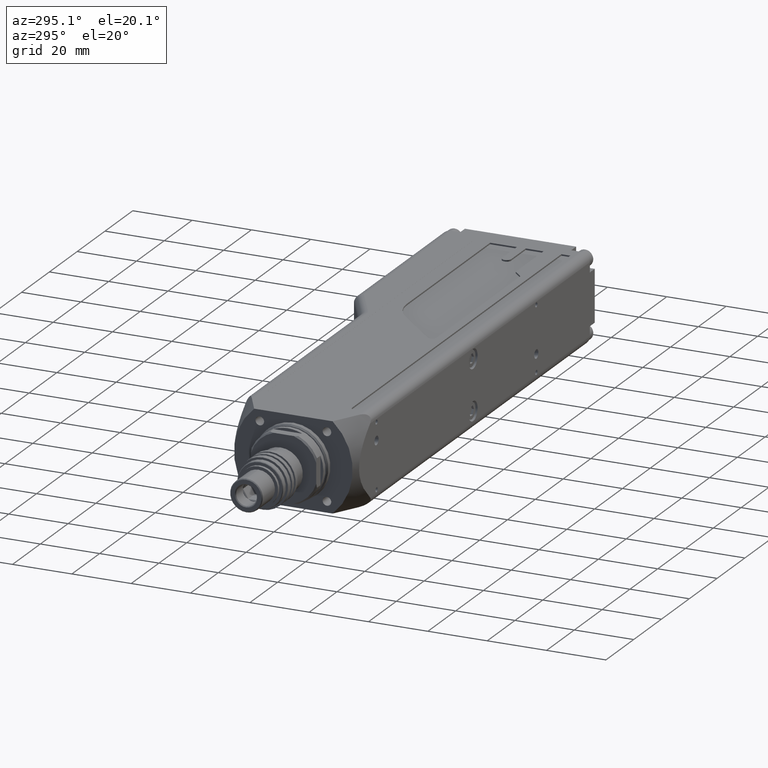
[diagram: clean part render]
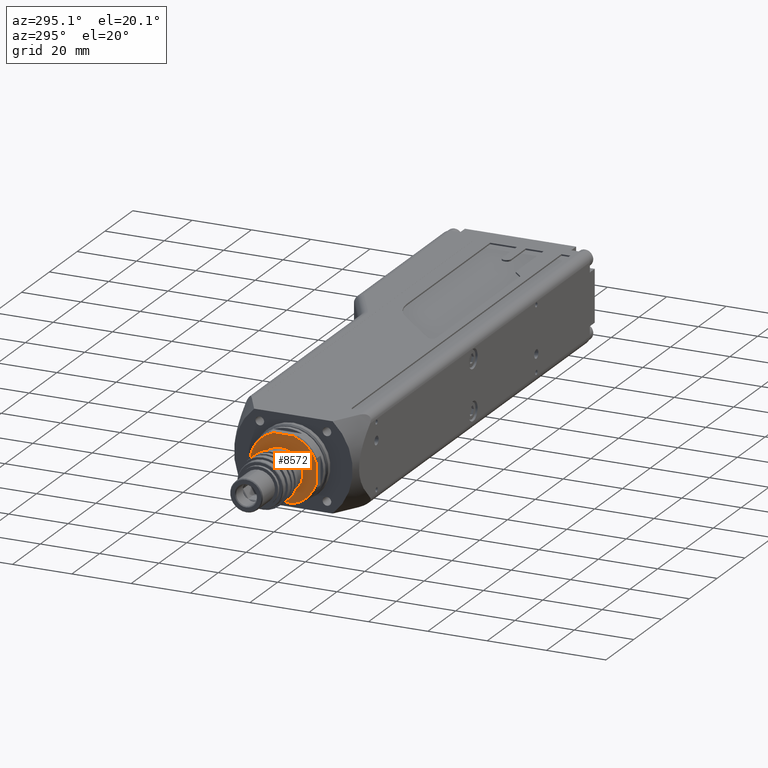
[diagram: same view with one face highlighted and labeled with its STEP entity id]
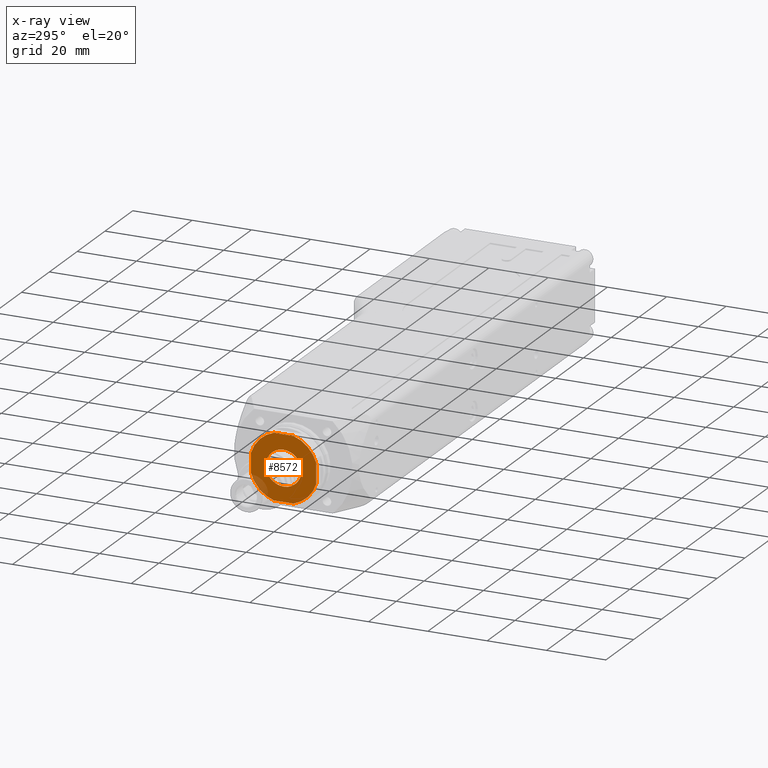
[diagram: x-ray of the same camera — body ghosted, the highlighted face saturated]
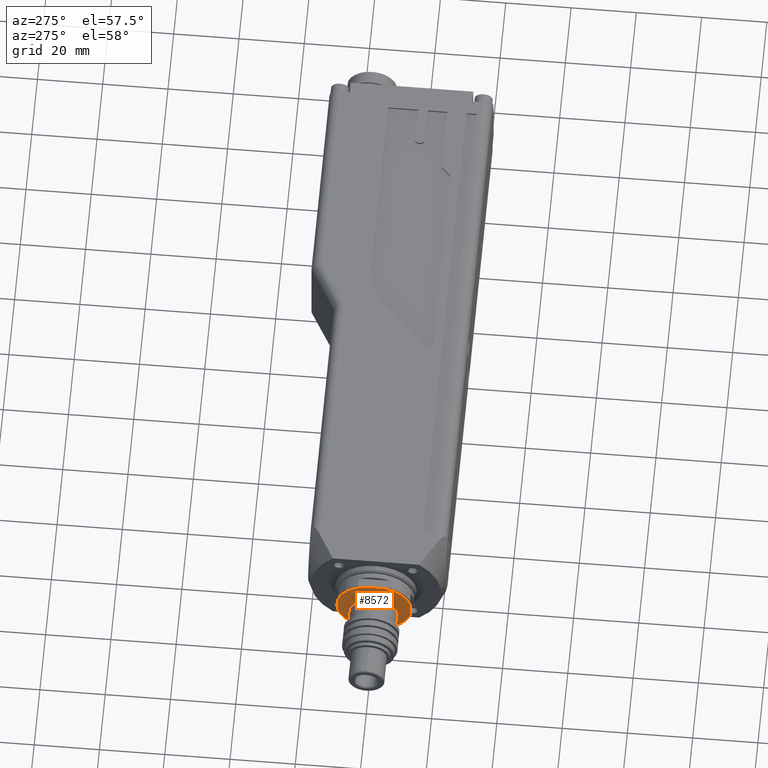
[diagram: same view with one face highlighted and labeled with its STEP entity id]
A machine part, auxiliary view. The second image highlights one B-rep face of the part: STEP entity #8572.
The next image is the same camera in x-ray: the body ghosted, the highlighted face saturated — about 5% of this face is hidden behind the body in this view.
A second angle (auxiliary view) of the same face is appended — the face is thin or edge-on in the first view.
In plain terms, the highlighted planar face has unit normal (-1, 0, 0).
Its self-contained STEP definition (entity closure, byte-faithful):
#28 = VERTEX_POINT ( 'NONE', #6483 ) ;
#32 = EDGE_CURVE ( 'NONE', #10469, #4910, #9357, .T. ) ;
#47 = DIRECTION ( 'NONE',  ( -1.000000000000000000, 0.0000000000000000000, 0.0000000000000000000 ) ) ;
#281 = DIRECTION ( 'NONE',  ( 0.0000000000000000000, 0.0000000000000000000, -1.000000000000000000 ) ) ;
#358 = CARTESIAN_POINT ( 'NONE',  ( 27.00000000000000400, 0.0000000000000000000, 0.0000000000000000000 ) ) ;
#359 = CIRCLE ( 'NONE', #2637, 6.000000000000003600 ) ;
#406 = EDGE_CURVE ( 'NONE', #3690, #10895, #7488, .T. ) ;
#408 = CARTESIAN_POINT ( 'NONE',  ( 27.00000000000000400, 0.0000000000000000000, 0.0000000000000000000 ) ) ;
#452 = CARTESIAN_POINT ( 'NONE',  ( 27.00000000000000400, 0.0000000000000000000, 0.0000000000000000000 ) ) ;
#477 = DIRECTION ( 'NONE',  ( -0.0000000000000000000, 1.000000000000000000, -3.491481338843133400E-015 ) ) ;
#605 = DIRECTION ( 'NONE',  ( 1.000000000000000000, -0.0000000000000000000, -0.0000000000000000000 ) ) ;
#905 = CIRCLE ( 'NONE', #10062, 11.50000000000000400 ) ;
#1176 = CARTESIAN_POINT ( 'NONE',  ( 27.00000000000000400, -3.354101966249569700, 11.00000000000003700 ) ) ;
#1457 = DIRECTION ( 'NONE',  ( 0.0000000000000000000, 0.0000000000000000000, -1.000000000000000000 ) ) ;
#1489 = DIRECTION ( 'NONE',  ( 0.0000000000000000000, 0.0000000000000000000, -1.000000000000000000 ) ) ;
#1635 = CIRCLE ( 'NONE', #4467, 11.50000000000000400 ) ;
#1649 = VECTOR ( 'NONE', #477, 1000.000000000000000 ) ;
#1778 = EDGE_LOOP ( 'NONE', ( #11576, #6506 ) ) ;
#1891 = CARTESIAN_POINT ( 'NONE',  ( 27.00000000000000400, 6.000000000000003600, 0.0000000000000000000 ) ) ;
#1905 = DIRECTION ( 'NONE',  ( -0.0000000000000000000, -0.0000000000000000000, -1.000000000000000000 ) ) ;
#2006 = ORIENTED_EDGE ( 'NONE', *, *, #11535, .F. ) ;
#2183 = CARTESIAN_POINT ( 'NONE',  ( 27.00000000000000400, -21.00000000000009200, -10.99999999999993100 ) ) ;
#2215 = LINE ( 'NONE', #9974, #11538 ) ;
#2330 = ORIENTED_EDGE ( 'NONE', *, *, #9121, .F. ) ;
#2637 = AXIS2_PLACEMENT_3D ( 'NONE', #408, #9537, #1489 ) ;
#2658 = VERTEX_POINT ( 'NONE', #6518 ) ;
#3193 = AXIS2_PLACEMENT_3D ( 'NONE', #4875, #8430, #9472 ) ;
#3255 = CIRCLE ( 'NONE', #5387, 11.50000000000000400 ) ;
#3345 = ORIENTED_EDGE ( 'NONE', *, *, #8112, .F. ) ;
#3521 = VERTEX_POINT ( 'NONE', #5830 ) ;
#3587 = EDGE_LOOP ( 'NONE', ( #5963, #3345, #3937, #5026, #2006, #3836, #2330, #7435 ) ) ;
#3690 = VERTEX_POINT ( 'NONE', #9741 ) ;
#3836 = ORIENTED_EDGE ( 'NONE', *, *, #6747, .F. ) ;
#3937 = ORIENTED_EDGE ( 'NONE', *, *, #406, .F. ) ;
#4467 = AXIS2_PLACEMENT_3D ( 'NONE', #452, #6746, #4908 ) ;
#4518 = DIRECTION ( 'NONE',  ( 0.0000000000000000000, 0.0000000000000000000, 1.000000000000000000 ) ) ;
#4789 = DIRECTION ( 'NONE',  ( -0.0000000000000000000, -0.0000000000000000000, 1.000000000000000000 ) ) ;
#4827 = FACE_OUTER_BOUND ( 'NONE', #3587, .T. ) ;
#4875 = CARTESIAN_POINT ( 'NONE',  ( 27.00000000000000400, 0.0000000000000000000, 0.0000000000000000000 ) ) ;
#4908 = DIRECTION ( 'NONE',  ( 0.0000000000000000000, 0.0000000000000000000, -1.000000000000000000 ) ) ;
#4910 = VERTEX_POINT ( 'NONE', #9383 ) ;
#4993 = VERTEX_POINT ( 'NONE', #1176 ) ;
#5026 = ORIENTED_EDGE ( 'NONE', *, *, #9279, .F. ) ;
#5138 = DIRECTION ( 'NONE',  ( 0.0000000000000000000, 0.0000000000000000000, -1.000000000000000000 ) ) ;
#5327 = DIRECTION ( 'NONE',  ( -0.0000000000000000000, -1.000000000000000000, 1.047444401652940000E-014 ) ) ;
#5387 = AXIS2_PLACEMENT_3D ( 'NONE', #358, #5679, #281 ) ;
#5509 = PLANE ( 'NONE',  #9396 ) ;
#5679 = DIRECTION ( 'NONE',  ( 1.000000000000000000, -0.0000000000000000000, -0.0000000000000000000 ) ) ;
#5830 = CARTESIAN_POINT ( 'NONE',  ( 27.00000000000000400, 3.354101966249646100, -11.00000000000001400 ) ) ;
#5939 = CARTESIAN_POINT ( 'NONE',  ( 27.00000000000000400, 0.0000000000000000000, -6.000000000000003600 ) ) ;
#5963 = ORIENTED_EDGE ( 'NONE', *, *, #9573, .F. ) ;
#6054 = AXIS2_PLACEMENT_3D ( 'NONE', #7930, #605, #5138 ) ;
#6409 = EDGE_CURVE ( 'NONE', #3521, #6942, #9136, .T. ) ;
#6483 = CARTESIAN_POINT ( 'NONE',  ( 27.00000000000000400, 3.354101966249798800, 10.99999999999996800 ) ) ;
#6506 = ORIENTED_EDGE ( 'NONE', *, *, #11380, .T. ) ;
#6518 = CARTESIAN_POINT ( 'NONE',  ( 27.00000000000000400, 11.00000000000000400, 3.354101966249684300 ) ) ;
#6746 = DIRECTION ( 'NONE',  ( 1.000000000000000000, -0.0000000000000000000, -0.0000000000000000000 ) ) ;
#6747 = EDGE_CURVE ( 'NONE', #2658, #28, #3255, .T. ) ;
#6942 = VERTEX_POINT ( 'NONE', #7517 ) ;
#7297 = CARTESIAN_POINT ( 'NONE',  ( 27.00000000000000400, -11.00000000000000400, 15.00000000000000000 ) ) ;
#7435 = ORIENTED_EDGE ( 'NONE', *, *, #6409, .F. ) ;
#7488 = LINE ( 'NONE', #7297, #9636 ) ;
#7517 = CARTESIAN_POINT ( 'NONE',  ( 27.00000000000000400, 11.00000000000000400, -3.354101966249684300 ) ) ;
#7930 = CARTESIAN_POINT ( 'NONE',  ( 27.00000000000000400, 0.0000000000000000000, 0.0000000000000000000 ) ) ;
#8081 = FACE_BOUND ( 'NONE', #1778, .T. ) ;
#8112 = EDGE_CURVE ( 'NONE', #10895, #8383, #905, .T. ) ;
#8172 = CARTESIAN_POINT ( 'NONE',  ( 27.00000000000000400, 21.00000000000027400, 10.99999999999978300 ) ) ;
#8383 = VERTEX_POINT ( 'NONE', #10801 ) ;
#8430 = DIRECTION ( 'NONE',  ( 1.000000000000000000, -0.0000000000000000000, -0.0000000000000000000 ) ) ;
#8572 = ADVANCED_FACE ( 'NONE', ( #4827, #8081 ), #5509, .T. ) ;
#8696 = CARTESIAN_POINT ( 'NONE',  ( 27.00000000000000400, -11.00000000000000400, -3.354101966249684300 ) ) ;
#8824 = LINE ( 'NONE', #8172, #11101 ) ;
#9121 = EDGE_CURVE ( 'NONE', #6942, #2658, #2215, .T. ) ;
#9136 = CIRCLE ( 'NONE', #6054, 11.50000000000000400 ) ;
#9279 = EDGE_CURVE ( 'NONE', #4993, #3690, #1635, .T. ) ;
#9357 = CIRCLE ( 'NONE', #3193, 6.000000000000003600 ) ;
#9383 = CARTESIAN_POINT ( 'NONE',  ( 27.00000000000000400, 7.347880794884123700E-016, 6.000000000000003600 ) ) ;
#9396 = AXIS2_PLACEMENT_3D ( 'NONE', #1891, #47, #4518 ) ;
#9472 = DIRECTION ( 'NONE',  ( 0.0000000000000000000, 0.0000000000000000000, -1.000000000000000000 ) ) ;
#9537 = DIRECTION ( 'NONE',  ( 1.000000000000000000, -0.0000000000000000000, -0.0000000000000000000 ) ) ;
#9573 = EDGE_CURVE ( 'NONE', #8383, #3521, #10096, .T. ) ;
#9636 = VECTOR ( 'NONE', #1905, 1000.000000000000000 ) ;
#9741 = CARTESIAN_POINT ( 'NONE',  ( 27.00000000000000400, -11.00000000000000400, 3.354101966249684300 ) ) ;
#9974 = CARTESIAN_POINT ( 'NONE',  ( 27.00000000000000400, 11.00000000000000400, -15.00000000000000000 ) ) ;
#10062 = AXIS2_PLACEMENT_3D ( 'NONE', #11250, #10455, #1457 ) ;
#10096 = LINE ( 'NONE', #2183, #1649 ) ;
#10455 = DIRECTION ( 'NONE',  ( 1.000000000000000000, -0.0000000000000000000, -0.0000000000000000000 ) ) ;
#10469 = VERTEX_POINT ( 'NONE', #5939 ) ;
#10801 = CARTESIAN_POINT ( 'NONE',  ( 27.00000000000000400, -3.354101966249722500, -10.99999999999999100 ) ) ;
#10895 = VERTEX_POINT ( 'NONE', #8696 ) ;
#11101 = VECTOR ( 'NONE', #5327, 1000.000000000000000 ) ;
#11250 = CARTESIAN_POINT ( 'NONE',  ( 27.00000000000000400, 0.0000000000000000000, 0.0000000000000000000 ) ) ;
#11380 = EDGE_CURVE ( 'NONE', #4910, #10469, #359, .T. ) ;
#11535 = EDGE_CURVE ( 'NONE', #28, #4993, #8824, .T. ) ;
#11538 = VECTOR ( 'NONE', #4789, 1000.000000000000000 ) ;
#11576 = ORIENTED_EDGE ( 'NONE', *, *, #32, .T. ) ;